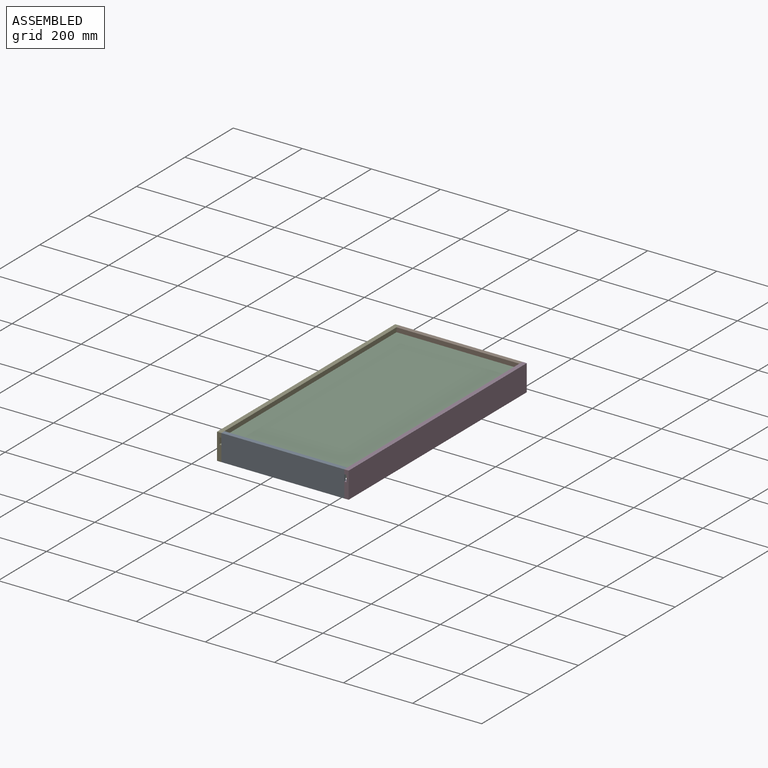
[diagram: assembled view]
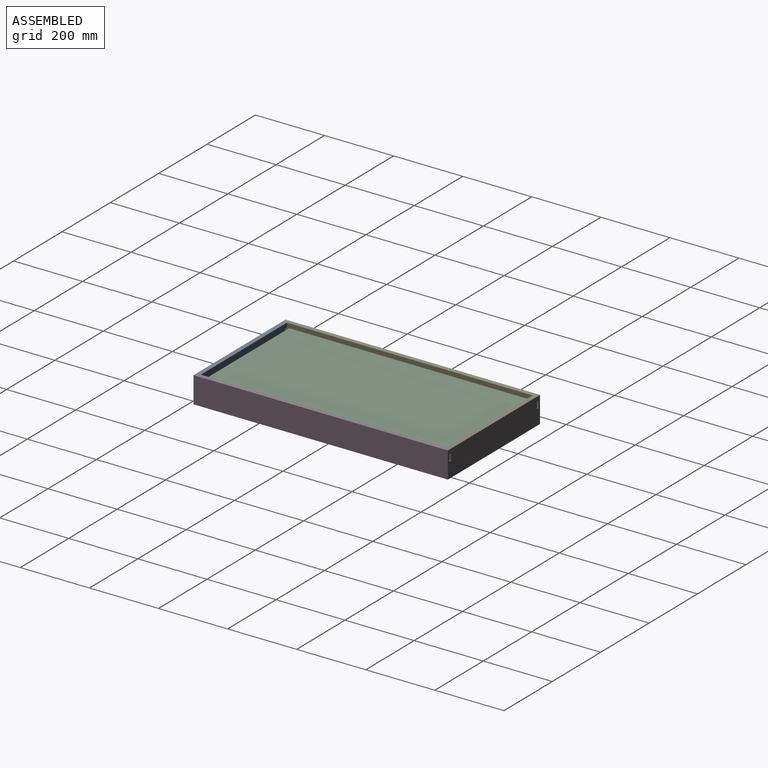
[diagram: assembled view, second angle]
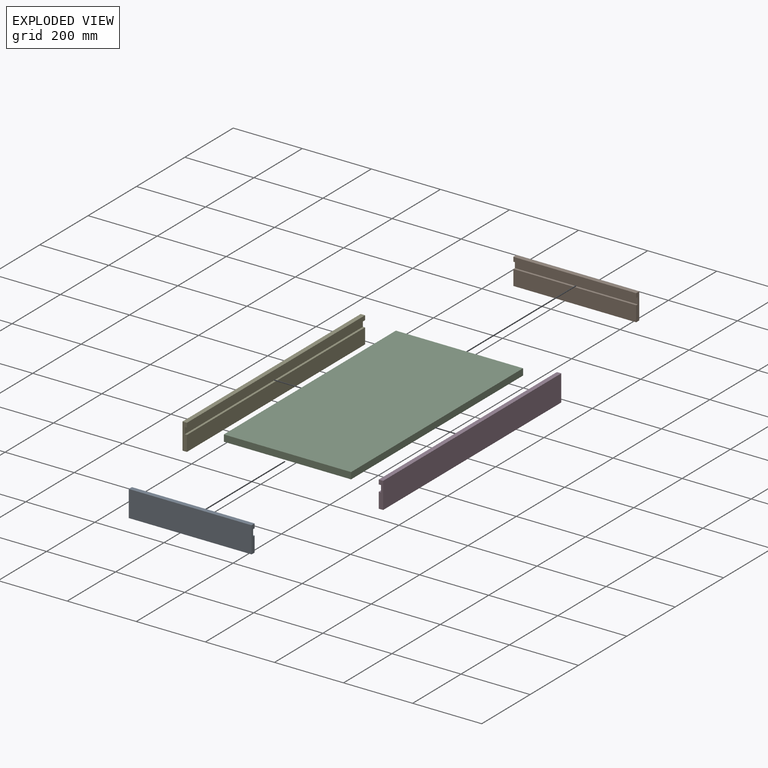
[diagram: exploded view]
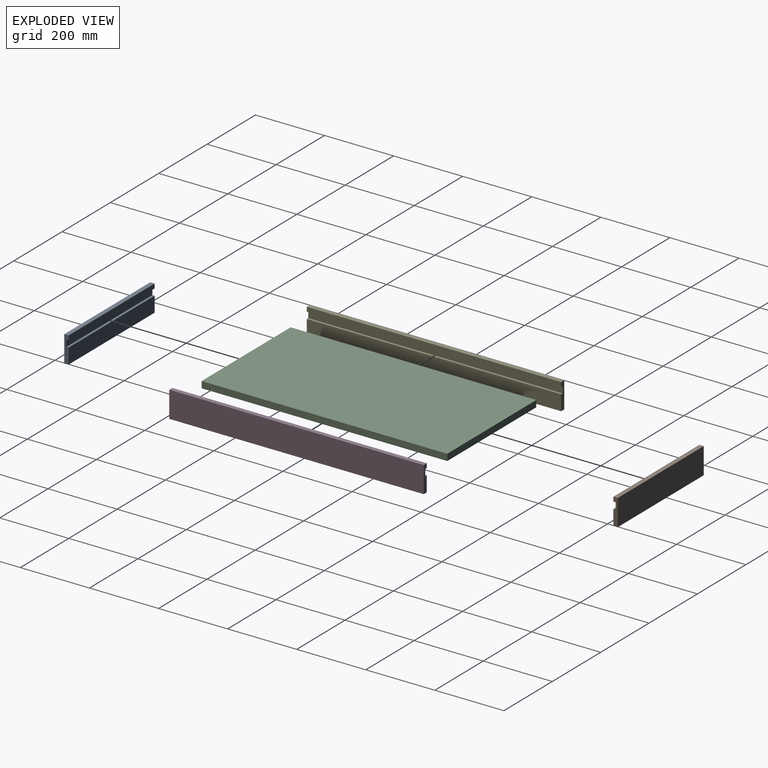
[diagram: exploded view, second angle]
ASSEMBLY  parts=5 mates=12
PART A: 10 faces, bbox 355.6x12.7x76.2 mm
  f0: plane 355.6x12.7mm, normal (0,-1,0), area 4516.1mm2, adj f1,f2,f3,f7
  f1: plane 76.2x12.7mm, normal (-1,0,0), area 846.8mm2, adj f0,f2,f4,f5,f6,f7,f8,f9
  f2: plane 355.6x12.7mm, normal (0,0,-1), area 4516.1mm2, adj f0,f1,f3,f6
  f3: plane 76.2x12.7mm, normal (1,0,0), area 846.8mm2, adj f0,f2,f4,f5,f6,f7,f8,f9
  f4: plane 355.6x12.7mm, normal (0,0,1), area 4516.1mm2, adj f1,f3,f5,f6
  f5: plane 355.6x44.45mm, normal (0,-1,0), area 15806.4mm2, adj f1,f3,f4,f8
  f6: plane 355.6x76.2mm, normal (0,1,0), area 27096.7mm2, adj f1,f2,f3,f4
  f7: plane 355.6x6.35mm, normal (0,0,1), area 2258.1mm2, adj f0,f1,f3,f9
  f8: plane 355.6x6.35mm, normal (0,0,-1), area 2258.1mm2, adj f1,f3,f5,f9
  f9: plane 355.6x19.05mm, normal (0,-1,0), area 6774.2mm2, adj f1,f3,f7,f8
PART B: same geometry as A
PART C: 6 faces, bbox 368.3x711.2x19.1 mm
  f0: plane 368.3x19.05mm, normal (0,-1,0), area 7016.1mm2, adj f1,f3,f4,f5
  f1: plane 711.2x19.05mm, normal (1,0,0), area 13548.4mm2, adj f0,f2,f4,f5
  f2: plane 368.3x19.05mm, normal (0,1,0), area 7016.1mm2, adj f1,f3,f4,f5
  f3: plane 711.2x19.05mm, normal (-1,0,0), area 13548.4mm2, adj f0,f2,f4,f5
  f4: plane 711.2x368.3mm, normal (0,0,1), area 261935mm2, adj f0,f1,f2,f3
  f5: plane 711.2x368.3mm, normal (0,0,-1), area 261935mm2, adj f0,f1,f2,f3
PART D: 10 faces, bbox 736.6x12.7x76.2 mm
  f0: plane 736.6x12.7mm, normal (0,-1,0), area 9354.8mm2, adj f1,f3,f4,f7
  f1: plane 76.2x12.7mm, normal (1,0,0), area 846.8mm2, adj f0,f2,f4,f5,f6,f7,f8,f9
  f2: plane 736.6x12.7mm, normal (0,0,1), area 9354.8mm2, adj f1,f3,f5,f6
  f3: plane 76.2x12.7mm, normal (-1,0,0), area 846.8mm2, adj f0,f2,f4,f5,f6,f7,f8,f9
  f4: plane 736.6x12.7mm, normal (0,0,-1), area 9354.8mm2, adj f0,f1,f3,f6
  f5: plane 736.6x44.45mm, normal (0,-1,0), area 32741.9mm2, adj f1,f2,f3,f8
  f6: plane 736.6x76.2mm, normal (0,1,0), area 56128.9mm2, adj f1,f2,f3,f4
  f7: plane 736.6x6.35mm, normal (0,0,1), area 4677.4mm2, adj f0,f1,f3,f9
  f8: plane 736.6x6.35mm, normal (0,0,-1), area 4677.4mm2, adj f1,f3,f5,f9
  f9: plane 736.6x19.05mm, normal (0,-1,0), area 14032.2mm2, adj f1,f3,f7,f8
PART E: same geometry as D
PLACE A rot(axis=(1,0,0),180deg) t=(-1176.51,26.34,-1157.95)mm
PLACE B rot(axis=(0,1,0),180deg) t=(-1532.11,762.94,-1157.95)mm
PLACE C t=(-1170.16,45.39,-1189.7)mm
PLACE D rot(axis=(0.71,0.71,0),180deg) t=(-1163.81,762.94,-1157.95)mm
PLACE E rot(axis=(-0.71,0.71,0),180deg) t=(-1544.81,26.34,-1157.95)mm
MATE planar D.f3 <-> A.f6  axis (0,-1,0) through (-1169.71,26.34,-1198.32)mm
MATE planar A.f1 <-> E.f5  axis (-1,0,0) through (-1532.11,32.23,-1198.32)mm
MATE planar A.f6 <-> E.f1  axis (0,-1,0) through (-1354.31,26.34,-1196.05)mm
MATE planar D.f5 <-> B.f1  axis (-1,0,0) through (-1176.51,394.64,-1211.93)mm
MATE planar E.f4 <-> B.f2  axis (0,0,1) through (-1538.46,394.64,-1157.95)mm
MATE planar B.f6 <-> D.f1  axis (0,1,0) through (-1354.31,762.94,-1196.05)mm
MATE planar A.f2 <-> E.f4  axis (0,0,1) through (-1354.31,32.69,-1157.95)mm
MATE planar C.f2 <-> B.f9  axis (0,1,0) through (-1354.31,756.59,-1170.65)mm
MATE planar C.f1 <-> D.f9  axis (1,0,0) through (-1170.16,400.99,-1180.18)mm
MATE planar C.f4 <-> E.f7  axis (0,0,1) through (-1354.31,400.99,-1170.65)mm
MATE planar D.f4 <-> B.f2  axis (0,0,1) through (-1170.16,394.64,-1157.95)mm
MATE planar B.f3 <-> E.f5  axis (-1,0,0) through (-1532.11,757.04,-1198.32)mm
